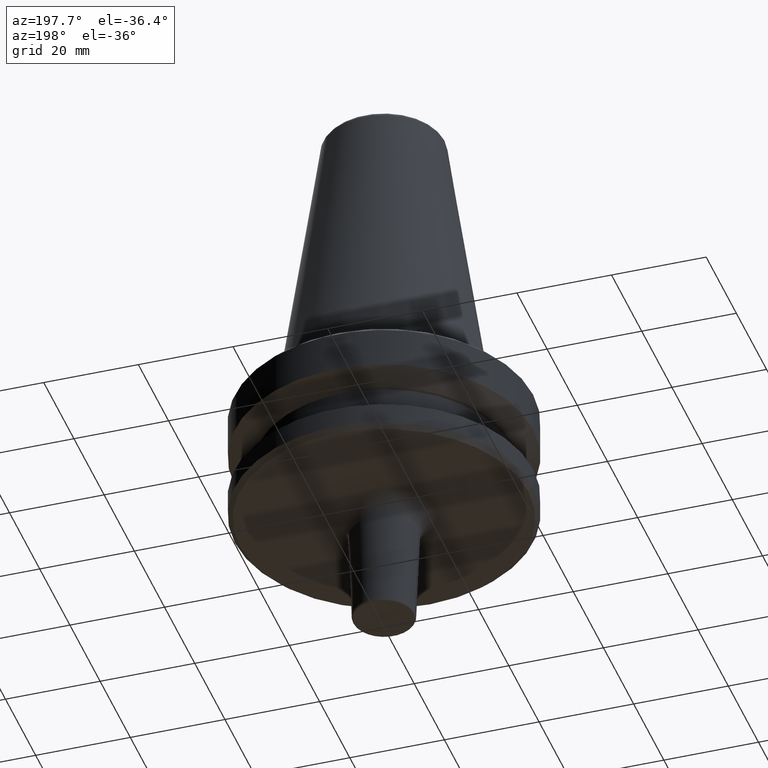
[diagram: clean part render]
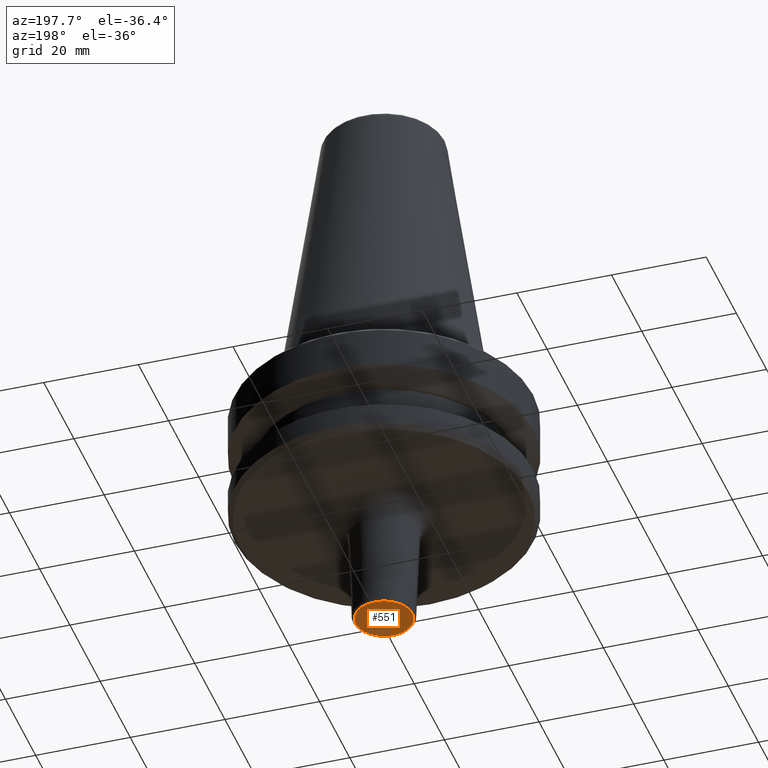
[diagram: same view with one face highlighted and labeled with its STEP entity id]
A machine part, auxiliary view. The second image highlights one B-rep face of the part: STEP entity #551.
In plain terms, the highlighted planar face has unit normal (0, 0, -1).
Its self-contained STEP definition (entity closure, byte-faithful):
#20 = DIRECTION ( 'NONE',  ( -1.000000000000000000, 0.0000000000000000000, -0.0000000000000000000 ) ) ;
#54 = DIRECTION ( 'NONE',  ( 1.000000000000000000, 0.0000000000000000000, 0.0000000000000000000 ) ) ;
#141 = VERTEX_POINT ( 'NONE', #964 ) ;
#222 = AXIS2_PLACEMENT_3D ( 'NONE', #1025, #533, #54 ) ;
#328 = EDGE_CURVE ( 'NONE', #653, #141, #835, .T. ) ;
#339 = PLANE ( 'NONE',  #654 ) ;
#352 = DIRECTION ( 'NONE',  ( -0.0000000000000000000, -0.0000000000000000000, 1.000000000000000000 ) ) ;
#459 = EDGE_LOOP ( 'NONE', ( #514, #650 ) ) ;
#500 = DIRECTION ( 'NONE',  ( 0.0000000000000000000, 0.0000000000000000000, -1.000000000000000000 ) ) ;
#514 = ORIENTED_EDGE ( 'NONE', *, *, #328, .F. ) ;
#533 = DIRECTION ( 'NONE',  ( -0.0000000000000000000, -0.0000000000000000000, 1.000000000000000000 ) ) ;
#551 = ADVANCED_FACE ( 'NONE', ( #854 ), #339, .T. ) ;
#646 = CARTESIAN_POINT ( 'NONE',  ( 0.0000000000000000000, 0.0000000000000000000, -117.4000000000080800 ) ) ;
#650 = ORIENTED_EDGE ( 'NONE', *, *, #788, .F. ) ;
#653 = VERTEX_POINT ( 'NONE', #676 ) ;
#654 = AXIS2_PLACEMENT_3D ( 'NONE', #646, #500, #20 ) ;
#676 = CARTESIAN_POINT ( 'NONE',  ( 6.019600159872415400, 0.0000000000000000000, -117.4000000000080800 ) ) ;
#763 = AXIS2_PLACEMENT_3D ( 'NONE', #820, #352, #908 ) ;
#788 = EDGE_CURVE ( 'NONE', #141, #653, #1032, .T. ) ;
#820 = CARTESIAN_POINT ( 'NONE',  ( 0.0000000000000000000, 0.0000000000000000000, -117.4000000000080800 ) ) ;
#835 = CIRCLE ( 'NONE', #222, 6.019600159872415400 ) ;
#854 = FACE_OUTER_BOUND ( 'NONE', #459, .T. ) ;
#908 = DIRECTION ( 'NONE',  ( 1.000000000000000000, 0.0000000000000000000, 0.0000000000000000000 ) ) ;
#964 = CARTESIAN_POINT ( 'NONE',  ( -6.019600159872415400, 7.677801131885366400E-016, -117.4000000000080800 ) ) ;
#1025 = CARTESIAN_POINT ( 'NONE',  ( 0.0000000000000000000, 0.0000000000000000000, -117.4000000000080800 ) ) ;
#1032 = CIRCLE ( 'NONE', #763, 6.019600159872415400 ) ;